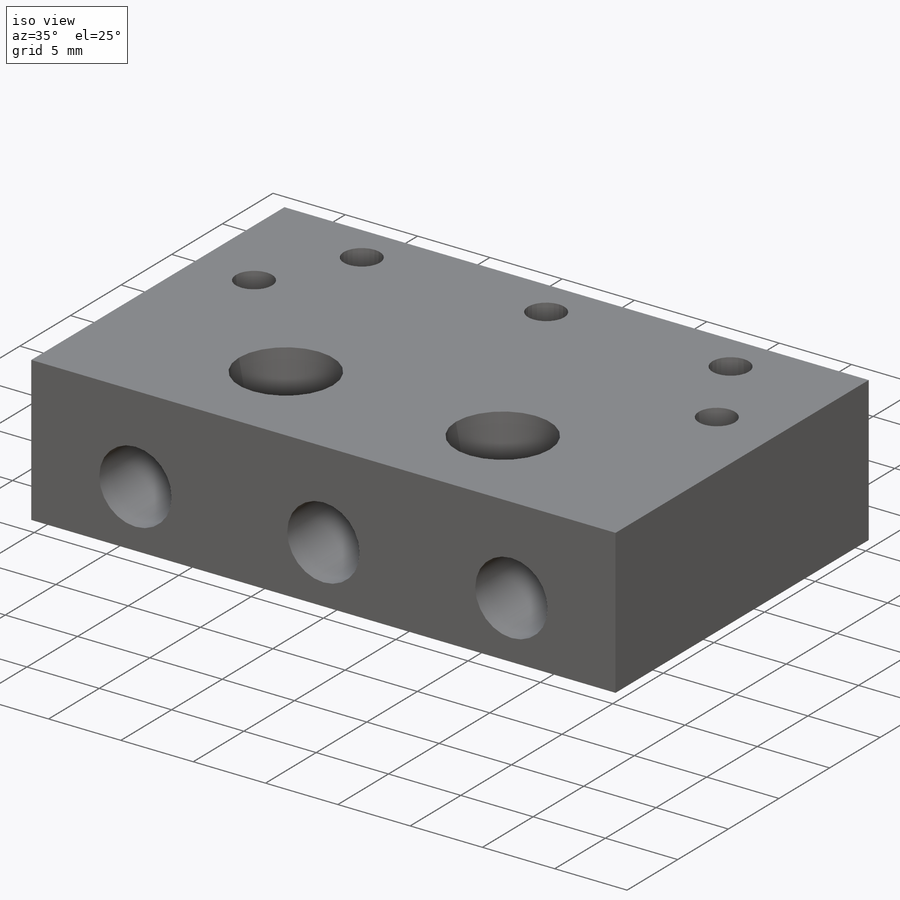
[diagram: iso view]
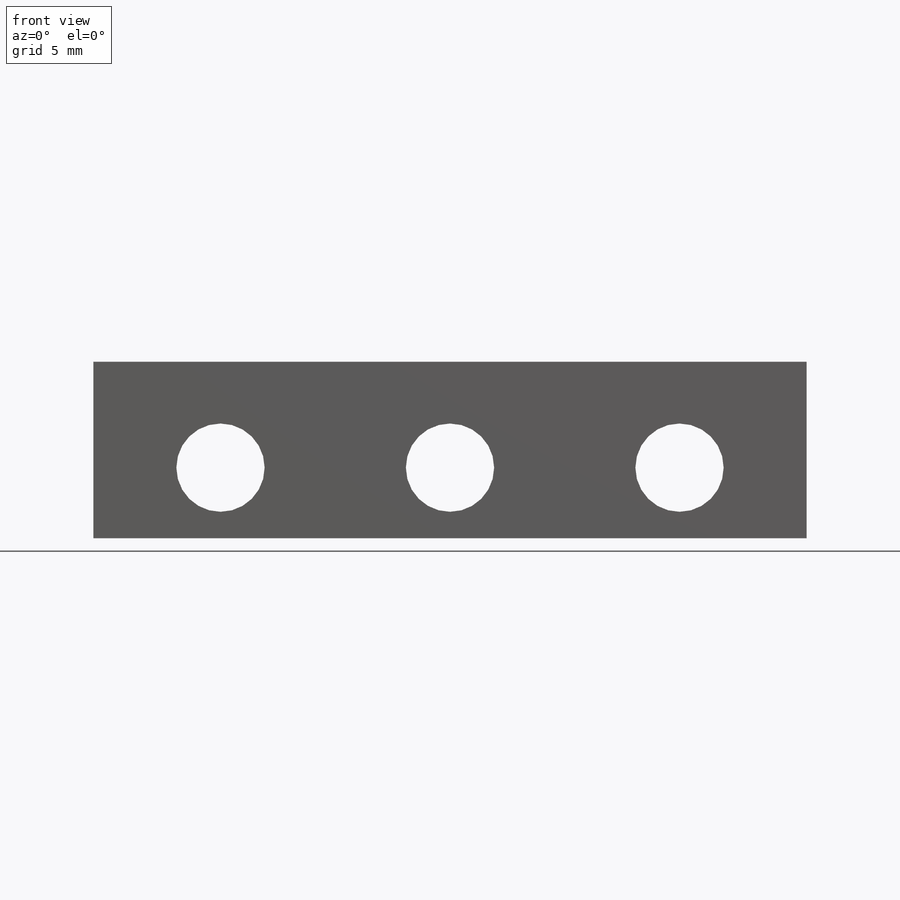
[diagram: front view]
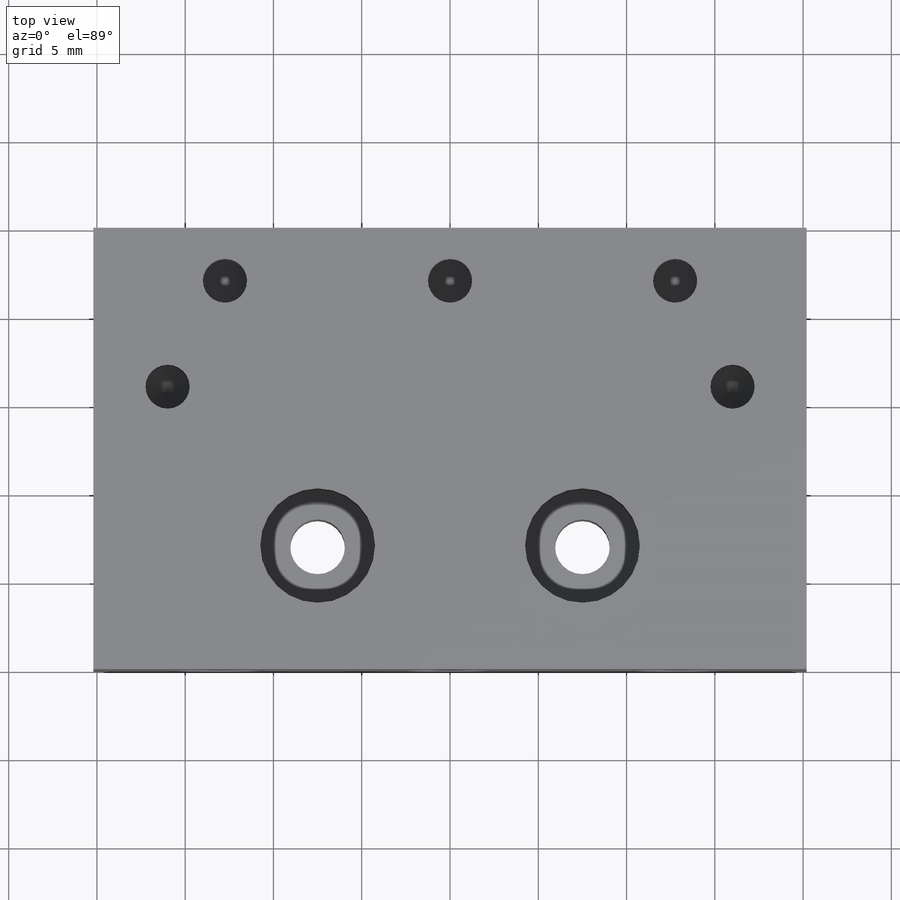
[diagram: top view]
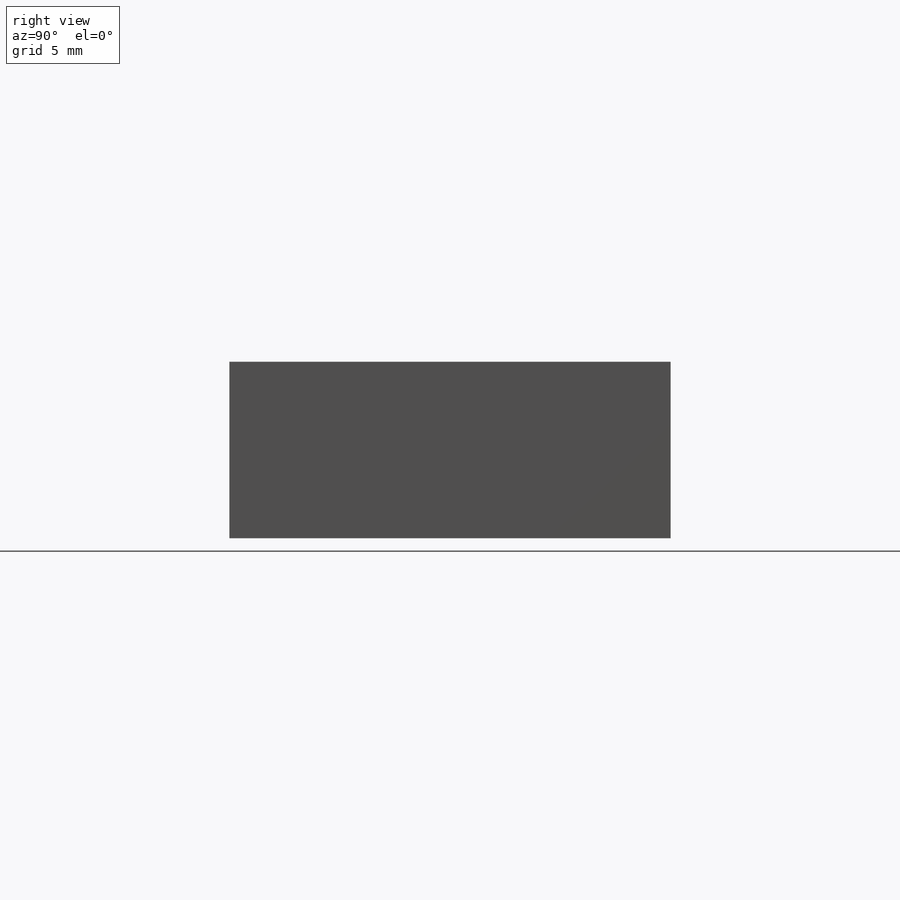
[diagram: right view]
SOLIDWORKS PART (.sldprt)
format: sldprt  version: not decoded by parser v0  size: 266,240 bytes
history: native  units: mm
features: sketch x5, cut_extrude x4, material x1, extrude x1, chamfer x1 (+12 scaffold rows collapsed)
feature tree (24):
  scaffold x12  (default folders/planes/origin — collapsed)
  material  "Material <not specified>"
  sketch  "Sketch1"  dims[D3=2.5mm D1=40.4mm D2=13.0mm D4=6.0mm D5=4.0mm]
  extrude  "Boss-Extrude1"  Depth=25mm
  sketch  "Sketch2"  dims[D1=2.5mm D3=3.1mm D2=15.0mm D4=9.0mm D5=17.75mm D6=17.75mm D7=7.0mm]
  cut_extrude  "Cut-Extrude1"  [1 undecoded]
  sketch  "Sketch3"  dims[D1=2.5mm D2=12.75mm D3=3.0mm]
  cut_extrude  "Cut-Extrude2"  [1 undecoded]
  sketch  "Sketch4"  dims[c1.D1=2.5mm c1.D3=2.5mm c1.D2=9.0mm c2.D3=32.0mm]
  cut_extrude  "Cut-Extrude3"  Depth=4mm
  chamfer  "Chamfer1"  Distance=1.25mm Angle=35.5deg
  sketch  "Sketch5"  dims[D1=6.5mm]
  cut_extrude  "Cut-Extrude4"  Depth=4mm
decode coverage: 9 of 11 modeling features carry decoded parameters
note: 2 parameter values undecoded
note: suppression state not decoded; provenance and decode notes live in map.json
